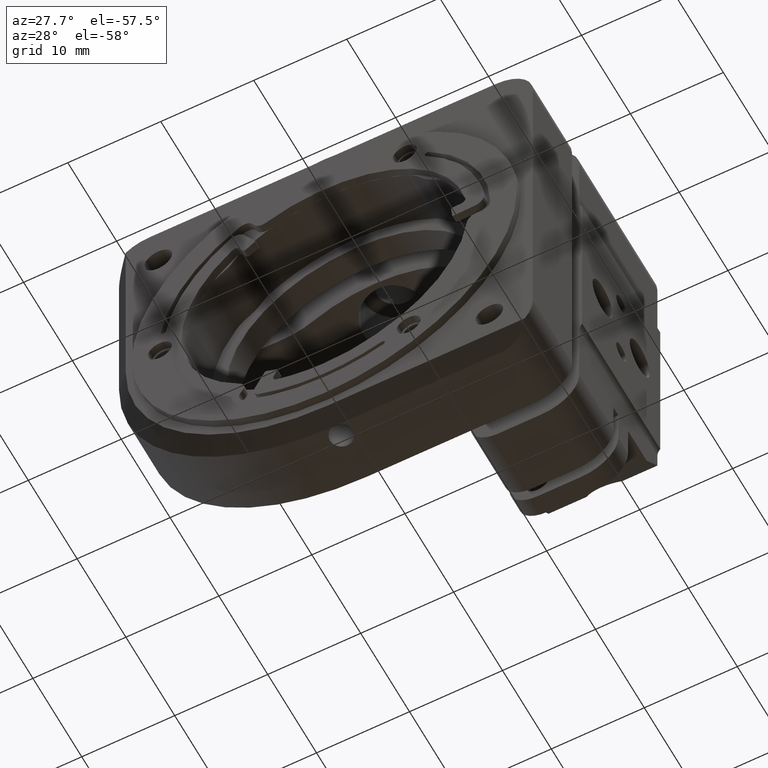
[diagram: clean part render]
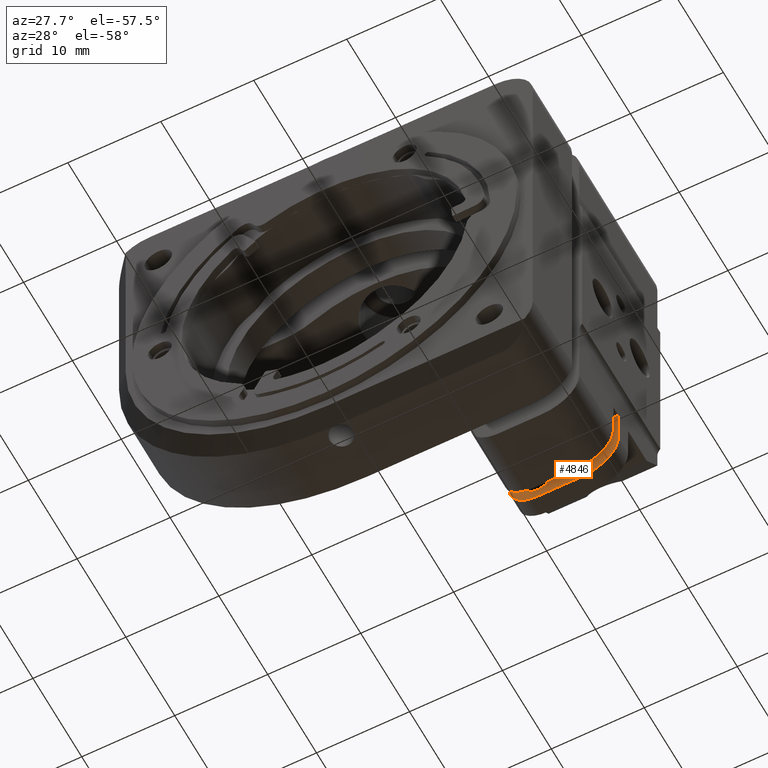
[diagram: same view with one face highlighted and labeled with its STEP entity id]
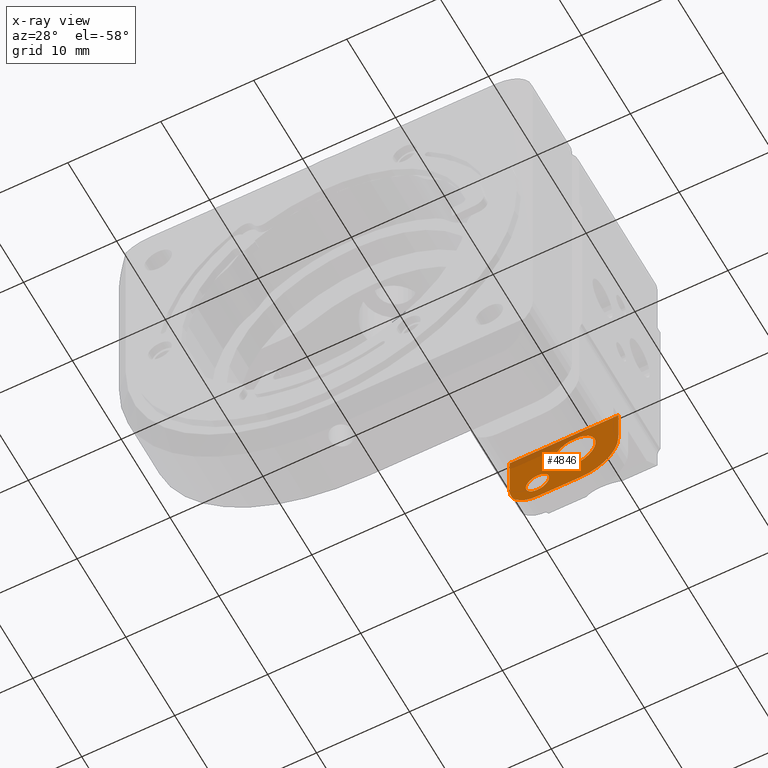
[diagram: x-ray of the same camera — body ghosted, the highlighted face saturated]
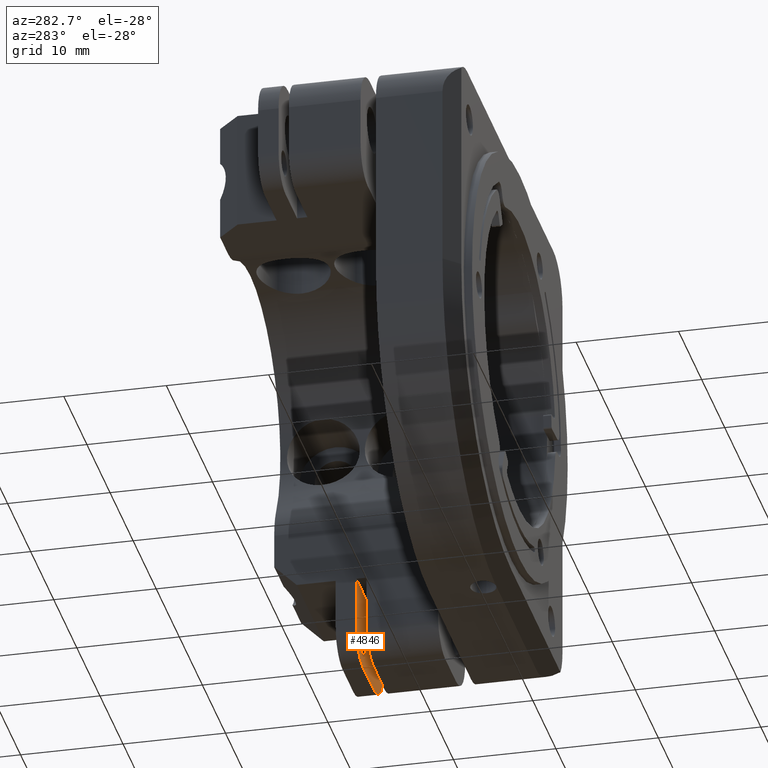
[diagram: same view with one face highlighted and labeled with its STEP entity id]
A machine part, auxiliary view. The second image highlights one B-rep face of the part: STEP entity #4846.
The next image is the same camera in x-ray: the body ghosted, the highlighted face saturated — about 12% of this face is hidden behind the body in this view.
A second angle (auxiliary view) of the same face is appended — the face is thin or edge-on in the first view.
In plain terms, the highlighted planar face has unit normal (0, -1, 0).
Its self-contained STEP definition (entity closure, byte-faithful):
#44 = CARTESIAN_POINT ( 'NONE',  ( 138.7848757045769900, 64.71614554938510400, -42.60000000000000100 ) ) ;
#66 = CARTESIAN_POINT ( 'NONE',  ( 141.7848756456780300, 64.71614554938510400, -43.20000005889900100 ) ) ;
#306 = VECTOR ( 'NONE', #3530, 1000.000000000000000 ) ;
#315 = ORIENTED_EDGE ( 'NONE', *, *, #6883, .F. ) ;
#461 = DIRECTION ( 'NONE',  ( 0.0000000000000000000, 0.0000000000000000000, 1.000000000000000000 ) ) ;
#527 = AXIS2_PLACEMENT_3D ( 'NONE', #3053, #4752, #5352 ) ;
#530 = VERTEX_POINT ( 'NONE', #2931 ) ;
#538 = DIRECTION ( 'NONE',  ( 0.0000000000000000000, 0.0000000000000000000, 1.000000000000000000 ) ) ;
#605 = FACE_BOUND ( 'NONE', #6053, .T. ) ;
#634 = ORIENTED_EDGE ( 'NONE', *, *, #892, .T. ) ;
#667 = DIRECTION ( 'NONE',  ( 0.0000000000000000000, 0.0000000000000000000, 1.000000000000000000 ) ) ;
#892 = EDGE_CURVE ( 'NONE', #530, #4224, #7238, .T. ) ;
#924 = VERTEX_POINT ( 'NONE', #3514 ) ;
#1017 = EDGE_CURVE ( 'NONE', #5889, #4224, #3547, .T. ) ;
#1179 = VERTEX_POINT ( 'NONE', #3439 ) ;
#1392 = VERTEX_POINT ( 'NONE', #5413 ) ;
#1884 = VECTOR ( 'NONE', #667, 1000.000000000000000 ) ;
#2209 = EDGE_CURVE ( 'NONE', #5889, #3529, #6812, .T. ) ;
#2300 = CIRCLE ( 'NONE', #527, 1.250000000000001100 ) ;
#2347 = ORIENTED_EDGE ( 'NONE', *, *, #1017, .F. ) ;
#2572 = CARTESIAN_POINT ( 'NONE',  ( 141.7848757045769900, 64.71614554938510400, -45.60000000000000100 ) ) ;
#2734 = AXIS2_PLACEMENT_3D ( 'NONE', #5141, #4532, #5119 ) ;
#2769 = AXIS2_PLACEMENT_3D ( 'NONE', #6386, #2874, #538 ) ;
#2874 = DIRECTION ( 'NONE',  ( 0.0000000000000000000, 1.000000000000000000, 0.0000000000000000000 ) ) ;
#2931 = CARTESIAN_POINT ( 'NONE',  ( 150.4848757045771200, 64.71614554938510400, -37.59487150205109900 ) ) ;
#3009 = ORIENTED_EDGE ( 'NONE', *, *, #3219, .T. ) ;
#3053 = CARTESIAN_POINT ( 'NONE',  ( 141.7848756456780300, 64.71614554938510400, -43.20000005889900100 ) ) ;
#3055 = ORIENTED_EDGE ( 'NONE', *, *, #5330, .T. ) ;
#3073 = CIRCLE ( 'NONE', #4779, 3.999999999999996400 ) ;
#3219 = EDGE_CURVE ( 'NONE', #1392, #5088, #2300, .T. ) ;
#3227 = VERTEX_POINT ( 'NONE', #7098 ) ;
#3281 = CARTESIAN_POINT ( 'NONE',  ( 141.7848757045769900, 64.71614554938510400, -45.60000000000000100 ) ) ;
#3439 = CARTESIAN_POINT ( 'NONE',  ( 145.7848756456780000, 64.71614554938510400, -38.35000005889909900 ) ) ;
#3491 = CARTESIAN_POINT ( 'NONE',  ( 145.7848756456780000, 64.71614554938510400, -40.60000005889909900 ) ) ;
#3512 = ORIENTED_EDGE ( 'NONE', *, *, #4421, .T. ) ;
#3514 = CARTESIAN_POINT ( 'NONE',  ( 145.7848756456780000, 64.71614554938510400, -42.85000005889909900 ) ) ;
#3522 = DIRECTION ( 'NONE',  ( 0.0000000000000000000, 0.0000000000000000000, 1.000000000000000000 ) ) ;
#3527 = LINE ( 'NONE', #4078, #306 ) ;
#3529 = VERTEX_POINT ( 'NONE', #3281 ) ;
#3530 = DIRECTION ( 'NONE',  ( 6.936365803927990100E-014, 0.0000000000000000000, -1.000000000000000000 ) ) ;
#3547 = LINE ( 'NONE', #44, #1884 ) ;
#3778 = AXIS2_PLACEMENT_3D ( 'NONE', #3832, #4486, #6172 ) ;
#3832 = CARTESIAN_POINT ( 'NONE',  ( 141.7848757045769900, 64.71614554938510400, -42.60000000000000100 ) ) ;
#3982 = AXIS2_PLACEMENT_3D ( 'NONE', #66, #7068, #4183 ) ;
#4078 = CARTESIAN_POINT ( 'NONE',  ( 150.4848757045770100, 64.71614554938510400, -33.59708423684529800 ) ) ;
#4109 = FACE_OUTER_BOUND ( 'NONE', #6634, .T. ) ;
#4183 = DIRECTION ( 'NONE',  ( 0.0000000000000000000, 0.0000000000000000000, 1.000000000000000000 ) ) ;
#4224 = VERTEX_POINT ( 'NONE', #4456 ) ;
#4310 = EDGE_CURVE ( 'NONE', #924, #1179, #7072, .T. ) ;
#4421 = EDGE_CURVE ( 'NONE', #5088, #1392, #6597, .T. ) ;
#4456 = CARTESIAN_POINT ( 'NONE',  ( 138.7848757045769900, 64.71614554938510400, -37.59101384040780400 ) ) ;
#4465 = CARTESIAN_POINT ( 'NONE',  ( 146.4848757045770400, 64.71614554938510400, -45.59999999999964600 ) ) ;
#4486 = DIRECTION ( 'NONE',  ( 0.0000000000000000000, -1.000000000000000000, 0.0000000000000000000 ) ) ;
#4532 = DIRECTION ( 'NONE',  ( -0.0000000000000000000, -1.000000000000000000, -0.0000000000000000000 ) ) ;
#4630 = DIRECTION ( 'NONE',  ( -0.9999999456441224200, 0.0000000000000000000, 0.0003297146524454752500 ) ) ;
#4666 = FACE_BOUND ( 'NONE', #6815, .T. ) ;
#4752 = DIRECTION ( 'NONE',  ( 0.0000000000000000000, 1.000000000000000000, 0.0000000000000000000 ) ) ;
#4779 = AXIS2_PLACEMENT_3D ( 'NONE', #7029, #7004, #3522 ) ;
#4846 = ADVANCED_FACE ( 'NONE', ( #605, #4109, #4666 ), #4997, .T. ) ;
#4865 = VERTEX_POINT ( 'NONE', #4465 ) ;
#4905 = DIRECTION ( 'NONE',  ( 1.000000000000000000, 0.0000000000000000000, 0.0000000000000000000 ) ) ;
#4997 = PLANE ( 'NONE',  #3778 ) ;
#5027 = VECTOR ( 'NONE', #4905, 1000.000000000000000 ) ;
#5088 = VERTEX_POINT ( 'NONE', #6416 ) ;
#5119 = DIRECTION ( 'NONE',  ( 0.0000000000000000000, 0.0000000000000000000, 1.000000000000000000 ) ) ;
#5141 = CARTESIAN_POINT ( 'NONE',  ( 141.7848757045769900, 64.71614554938510400, -42.60000000000000100 ) ) ;
#5330 = EDGE_CURVE ( 'NONE', #3529, #4865, #6575, .T. ) ;
#5352 = DIRECTION ( 'NONE',  ( 0.0000000000000000000, 0.0000000000000000000, 1.000000000000000000 ) ) ;
#5413 = CARTESIAN_POINT ( 'NONE',  ( 141.7848756456780300, 64.71614554938510400, -44.45000005889900100 ) ) ;
#5733 = DIRECTION ( 'NONE',  ( 0.0000000000000000000, 1.000000000000000000, 0.0000000000000000000 ) ) ;
#5803 = CARTESIAN_POINT ( 'NONE',  ( 138.7848757045769900, 64.71614554938510400, -42.60000000000000100 ) ) ;
#5889 = VERTEX_POINT ( 'NONE', #5803 ) ;
#5926 = EDGE_CURVE ( 'NONE', #4865, #3227, #3073, .T. ) ;
#6053 = EDGE_LOOP ( 'NONE', ( #7310, #7392 ) ) ;
#6172 = DIRECTION ( 'NONE',  ( 0.0000000000000000000, -0.0000000000000000000, -1.000000000000000000 ) ) ;
#6333 = EDGE_CURVE ( 'NONE', #1179, #924, #6379, .T. ) ;
#6379 = CIRCLE ( 'NONE', #2769, 2.250000000000001800 ) ;
#6386 = CARTESIAN_POINT ( 'NONE',  ( 145.7848756456780000, 64.71614554938510400, -40.60000005889909900 ) ) ;
#6416 = CARTESIAN_POINT ( 'NONE',  ( 141.7848756456780300, 64.71614554938510400, -41.95000005889900100 ) ) ;
#6575 = LINE ( 'NONE', #2572, #5027 ) ;
#6579 = VECTOR ( 'NONE', #4630, 1000.000000000000100 ) ;
#6597 = CIRCLE ( 'NONE', #3982, 1.250000000000001100 ) ;
#6634 = EDGE_LOOP ( 'NONE', ( #315, #634, #2347, #7549, #3055, #6638 ) ) ;
#6638 = ORIENTED_EDGE ( 'NONE', *, *, #5926, .T. ) ;
#6812 = CIRCLE ( 'NONE', #2734, 3.000000000000002700 ) ;
#6815 = EDGE_LOOP ( 'NONE', ( #3512, #3009 ) ) ;
#6883 = EDGE_CURVE ( 'NONE', #530, #3227, #3527, .T. ) ;
#6988 = AXIS2_PLACEMENT_3D ( 'NONE', #3491, #5733, #461 ) ;
#7004 = DIRECTION ( 'NONE',  ( -0.0000000000000000000, -1.000000000000000000, -0.0000000000000000000 ) ) ;
#7029 = CARTESIAN_POINT ( 'NONE',  ( 146.4848757045770400, 64.71614554938510400, -41.59999999999929800 ) ) ;
#7068 = DIRECTION ( 'NONE',  ( 0.0000000000000000000, 1.000000000000000000, 0.0000000000000000000 ) ) ;
#7072 = CIRCLE ( 'NONE', #6988, 2.250000000000001800 ) ;
#7098 = CARTESIAN_POINT ( 'NONE',  ( 150.4848757045775500, 64.71614554938510400, -41.59999999999915600 ) ) ;
#7238 = LINE ( 'NONE', #7644, #6579 ) ;
#7310 = ORIENTED_EDGE ( 'NONE', *, *, #6333, .T. ) ;
#7392 = ORIENTED_EDGE ( 'NONE', *, *, #4310, .T. ) ;
#7549 = ORIENTED_EDGE ( 'NONE', *, *, #2209, .T. ) ;
#7644 = CARTESIAN_POINT ( 'NONE',  ( 150.4848757045770100, 64.71614554938510400, -37.59487150205109900 ) ) ;